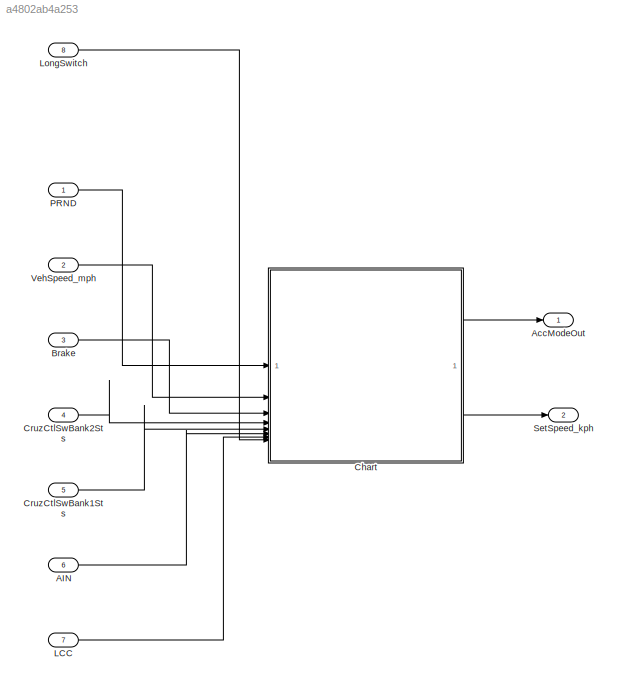
MODEL slx_a4802ab4a253
KIND model
CONFIG AbsTol = auto
CONFIG EnableMultiTasking = off
CONFIG FixedStep = auto
CONFIG MaxStep = auto
CONFIG MinStep = auto
CONFIG RelTol = 1e-3
CONFIG SampleTimeConstraint = Unconstrained
CONFIG SolverName = VariableStepAuto
CONFIG StartTime = 0.0
CONFIG StopTime = 10.0
BLOCK [Inport] AIN
  Port = 6
BLOCK [Outport] AccModeOut
BLOCK [Inport] Brake
  Port = 3
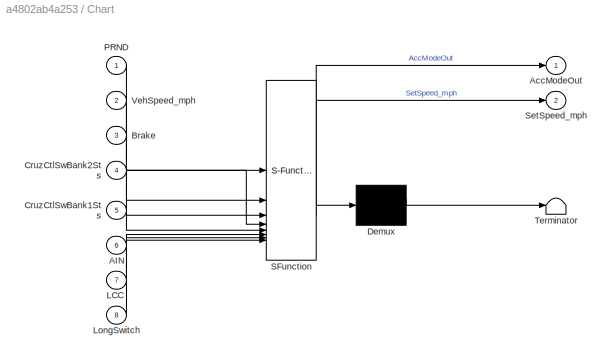
BLOCK [SubSystem] Chart
  ErrorFcn = Stateflow.Translate.translate
  PermitHierarchicalResolution = ExplicitOnly
  PortSchema = {"entries":[{"content":{"sides":[{"content":{"connectorIds":["In8","In1","In2","In3","In4","In5","In6","In7"]},"type":"ConnectorPlacement.EquallySpacedRectSide","uuid":"e85dcfe6-766c-482d-aa65-e7bbb4e3e1c4"},{"content":{"connectorIds":["Out1","Out2"],"side":"RIGHT"},"type":"ConnectorPlacement.EquallySpacedRectSide","uuid":"3867670f-d709-4b15-a3fa-6089a5f96600"},{"content":{"side":"TOP"},"type":"Co...<+271ch>
  SFBlockType = Chart
  TreatAsAtomicUnit = on
BLOCK [Demux] Chart/ Demux 
  Outputs = 1
BLOCK [S-Function] Chart/ SFunction 
  EnableBusSupport = off
  FunctionName = sf_sfun
  PortCounts = [8 3]
  SFcnIsStateOwnerBlock = off
  SFunctionDeploymentMode = off
  Tag = Stateflow S-Function 1
BLOCK [Terminator] Chart/ Terminator 
BLOCK [Inport] Chart/AIN
  Port = 6
BLOCK [Outport] Chart/AccModeOut
BLOCK [Inport] Chart/Brake
  Port = 3
BLOCK [Inport] Chart/CruzCtlSwBank1Sts
  Port = 5
BLOCK [Inport] Chart/CruzCtlSwBank2Sts
  Port = 4
BLOCK [Inport] Chart/LCC
  Port = 7
BLOCK [Inport] Chart/LongSwitch
  Port = 8
BLOCK [Inport] Chart/PRND
BLOCK [Outport] Chart/SetSpeed_mph
  Port = 2
BLOCK [Inport] Chart/VehSpeed_mph
  Port = 2
BLOCK [Inport] CruzCtlSwBank1Sts
  Port = 5
BLOCK [Inport] CruzCtlSwBank2Sts
  Port = 4
BLOCK [Inport] LCC
  Port = 7
BLOCK [Inport] LongSwitch
  Port = 8
BLOCK [Inport] PRND
BLOCK [Outport] SetSpeed_kph
  Port = 2
BLOCK [Inport] VehSpeed_mph
  Port = 2
LINE AIN:1 -> Chart:6
LINE Brake:1 -> Chart:3
LINE Chart:1 -> AccModeOut:1
LINE Chart:2 -> SetSpeed_kph:1
LINE CruzCtlSwBank1Sts:1 -> Chart:5
LINE CruzCtlSwBank2Sts:1 -> Chart:4
LINE LCC:1 -> Chart:7
LINE LongSwitch:1 -> Chart:8
LINE PRND:1 -> Chart:1
LINE VehSpeed_mph:1 -> Chart:2
CHART Test Sequence states=3 transitions=6
  STATE_LABEL 'Run\n\n%% Initialize data outputs.\nPRND = 0;\nVehSpeed_kph = 0;\nCruzCtlSwBank2Sts = 0;\nCruzCtlSwBank1Sts = 0;'
  STATE_LABEL 'step_1'
  STATE_LABEL 'step_2'
CHART Chart states=4 transitions=11
  STATE_LABEL 'ok = precondsOK(SteeringInput, Speed, isBraking, AIN_Active, LCC_Active)'
  STATE_LABEL 'SCRIPT:\nfunction ok = precondsOK(SteeringInput, Speed, isBraking, AIN_Active, LCC_Active)\n%#codegen\n\n    % --- Determine allowable maximum speed ---\n    % Default max speed (normal ACC)\n    maxSpeed = 65;\n\n    % If AIN is active, reduce to 55\n    if AIN_Active\n        maxSpeed = 55;\n    end\n\n    % If LCC is active, reduce even further to 35 (overrides AIN)\n    if LCC_Active\n        maxSpeed = 35;\n...<+192ch>'
  STATE_LABEL 'Armed\nentry:\nAccModeOut = 1;'
  STATE_LABEL 'Off\nentry:\nAccModeOut = 0;'
  STATE_LABEL 'Engaged\nentry:\nAccModeOut = 2;\n'
CHART  states=0 transitions=0
